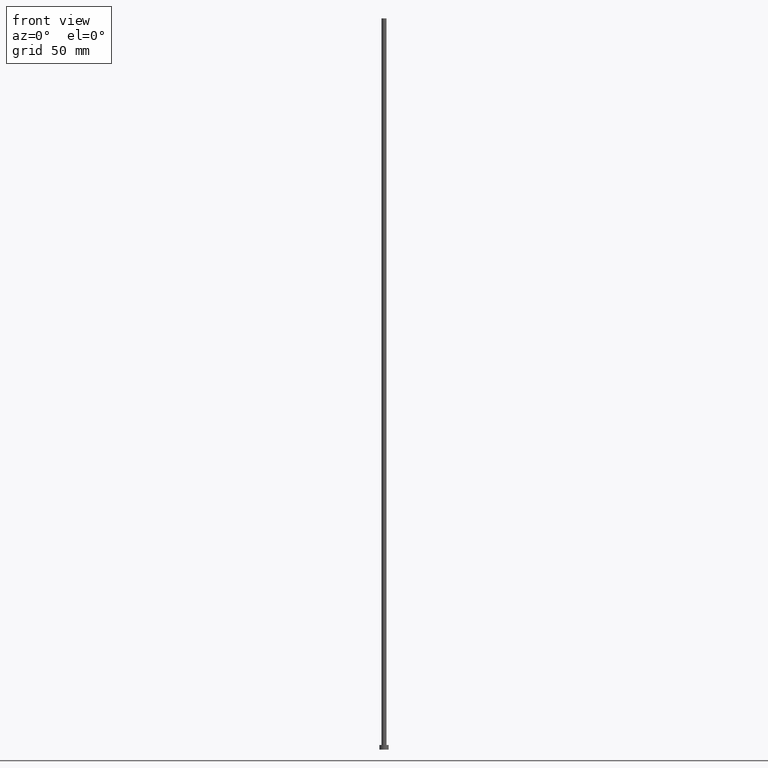
[diagram: clean part render]
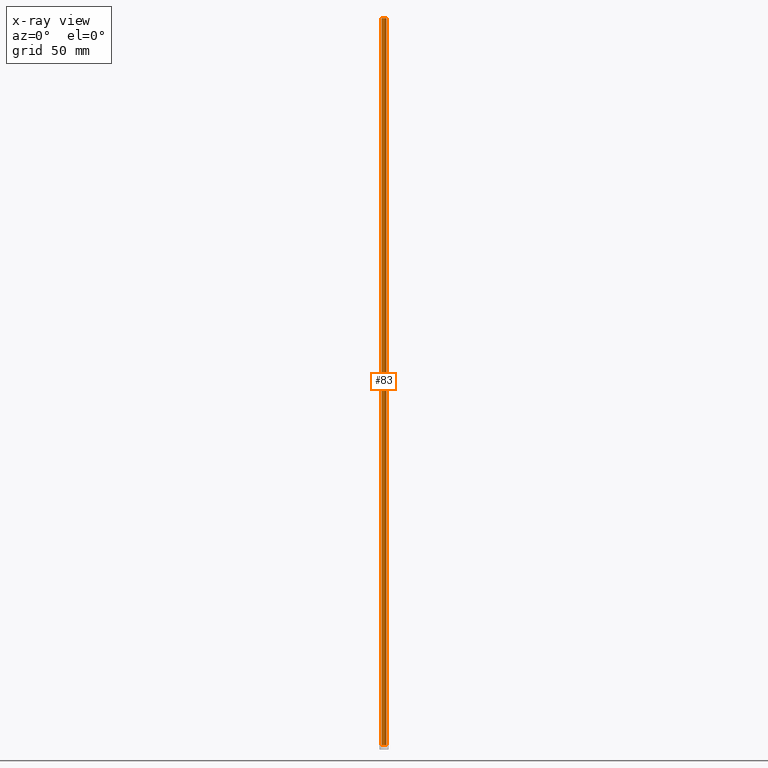
[diagram: x-ray — body ghosted, one internal face saturated and labeled with its STEP entity id]
A machine part, front view, then the same camera in x-ray: the body is ghosted and one INTERNAL B-rep face — a face not visible from any outside direction — is saturated and labeled: STEP entity #83.
In plain terms, the highlighted cylindrical surface (edge-blend (fillet) strip) has radius 1.1 mm, axis along (-0, -0, -1).
Its self-contained STEP definition (entity closure, byte-faithful):
#3 = CARTESIAN_POINT ( 'NONE',  ( -1.100000000000000089, 0.000000000000000000, 2.000000000000000000 ) ) ;
#7 = EDGE_CURVE ( 'NONE', #38, #216, #186, .T. ) ;
#13 = CIRCLE ( 'NONE', #237, 1.100000000000000089 ) ;
#17 = AXIS2_PLACEMENT_3D ( 'NONE', #154, #236, #59 ) ;
#37 = EDGE_CURVE ( 'NONE', #38, #253, #105, .T. ) ;
#38 = VERTEX_POINT ( 'NONE', #180 ) ;
#48 = FACE_OUTER_BOUND ( 'NONE', #78, .T. ) ;
#58 = ORIENTED_EDGE ( 'NONE', *, *, #244, .T. ) ;
#59 = DIRECTION ( 'NONE',  ( 1.000000000000000000, 0.000000000000000000, 0.000000000000000000 ) ) ;
#65 = CYLINDRICAL_SURFACE ( 'NONE', #128, 1.100000000000000089 ) ;
#67 = CARTESIAN_POINT ( 'NONE',  ( -1.100000000000000089, 0.000000000000000000, 315.0000000000000000 ) ) ;
#69 = DIRECTION ( 'NONE',  ( 1.000000000000000000, 0.000000000000000000, 0.000000000000000000 ) ) ;
#78 = EDGE_LOOP ( 'NONE', ( #132, #80, #58, #173 ) ) ;
#80 = ORIENTED_EDGE ( 'NONE', *, *, #37, .T. ) ;
#83 = ADVANCED_FACE ( 'NONE', ( #48 ), #65, .T. ) ;
#102 = DIRECTION ( 'NONE',  ( -0.000000000000000000, -0.000000000000000000, -1.000000000000000000 ) ) ;
#103 = DIRECTION ( 'NONE',  ( -0.000000000000000000, -0.000000000000000000, -1.000000000000000000 ) ) ;
#105 = LINE ( 'NONE', #242, #161 ) ;
#128 = AXIS2_PLACEMENT_3D ( 'NONE', #137, #102, #224 ) ;
#132 = ORIENTED_EDGE ( 'NONE', *, *, #7, .F. ) ;
#133 = VERTEX_POINT ( 'NONE', #3 ) ;
#137 = CARTESIAN_POINT ( 'NONE',  ( 0.000000000000000000, 0.000000000000000000, 315.0000000000000000 ) ) ;
#139 = DIRECTION ( 'NONE',  ( -0.000000000000000000, -0.000000000000000000, -1.000000000000000000 ) ) ;
#154 = CARTESIAN_POINT ( 'NONE',  ( 0.000000000000000000, 0.000000000000000000, 315.0000000000000000 ) ) ;
#160 = CARTESIAN_POINT ( 'NONE',  ( -1.100000000000000089, 0.000000000000000000, 315.0000000000000000 ) ) ;
#161 = VECTOR ( 'NONE', #103, 1000.000000000000000 ) ;
#173 = ORIENTED_EDGE ( 'NONE', *, *, #174, .F. ) ;
#174 = EDGE_CURVE ( 'NONE', #216, #133, #202, .T. ) ;
#180 = CARTESIAN_POINT ( 'NONE',  ( 1.100000000000000089, 1.347111479062088503E-16, 315.0000000000000000 ) ) ;
#186 = CIRCLE ( 'NONE', #17, 1.100000000000000089 ) ;
#198 = CARTESIAN_POINT ( 'NONE',  ( 0.000000000000000000, 0.000000000000000000, 2.000000000000000000 ) ) ;
#202 = LINE ( 'NONE', #67, #203 ) ;
#203 = VECTOR ( 'NONE', #139, 1000.000000000000000 ) ;
#216 = VERTEX_POINT ( 'NONE', #160 ) ;
#221 = CARTESIAN_POINT ( 'NONE',  ( 1.100000000000000089, 1.347111479062088503E-16, 2.000000000000000000 ) ) ;
#224 = DIRECTION ( 'NONE',  ( -1.000000000000000000, 0.000000000000000000, 0.000000000000000000 ) ) ;
#236 = DIRECTION ( 'NONE',  ( 0.000000000000000000, 0.000000000000000000, 1.000000000000000000 ) ) ;
#237 = AXIS2_PLACEMENT_3D ( 'NONE', #198, #243, #69 ) ;
#242 = CARTESIAN_POINT ( 'NONE',  ( 1.100000000000000089, 1.347111479062088503E-16, 315.0000000000000000 ) ) ;
#243 = DIRECTION ( 'NONE',  ( 0.000000000000000000, 0.000000000000000000, 1.000000000000000000 ) ) ;
#244 = EDGE_CURVE ( 'NONE', #253, #133, #13, .T. ) ;
#253 = VERTEX_POINT ( 'NONE', #221 ) ;